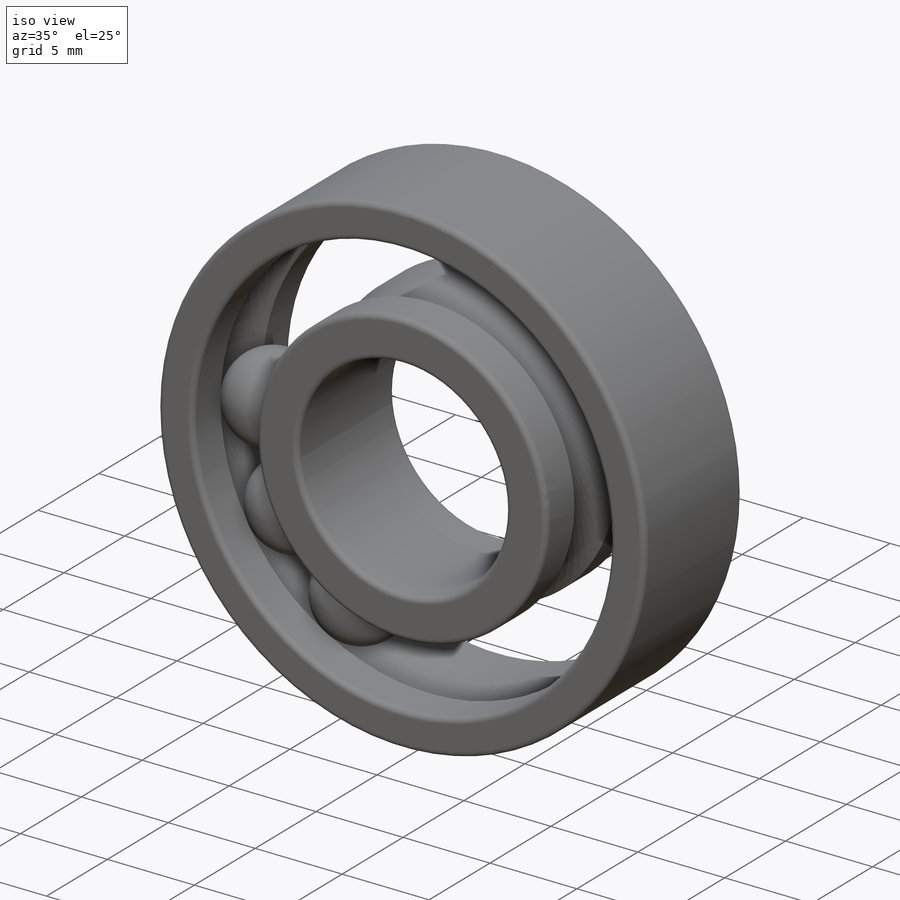
[diagram: iso view]
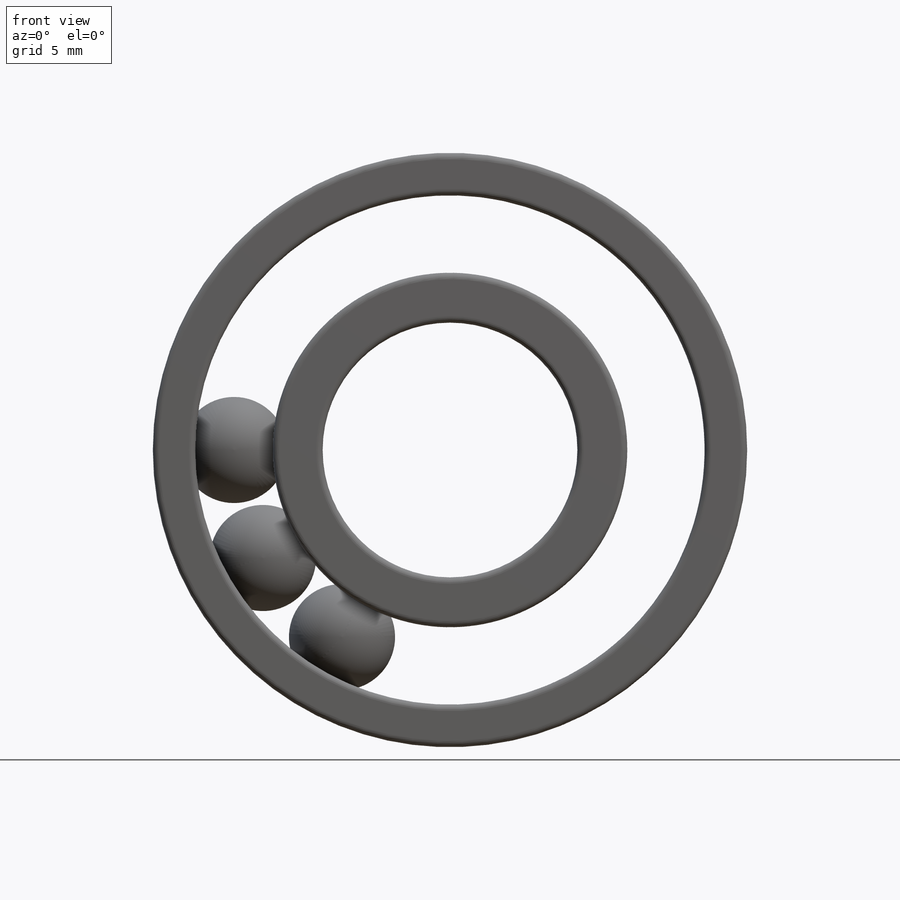
[diagram: front view]
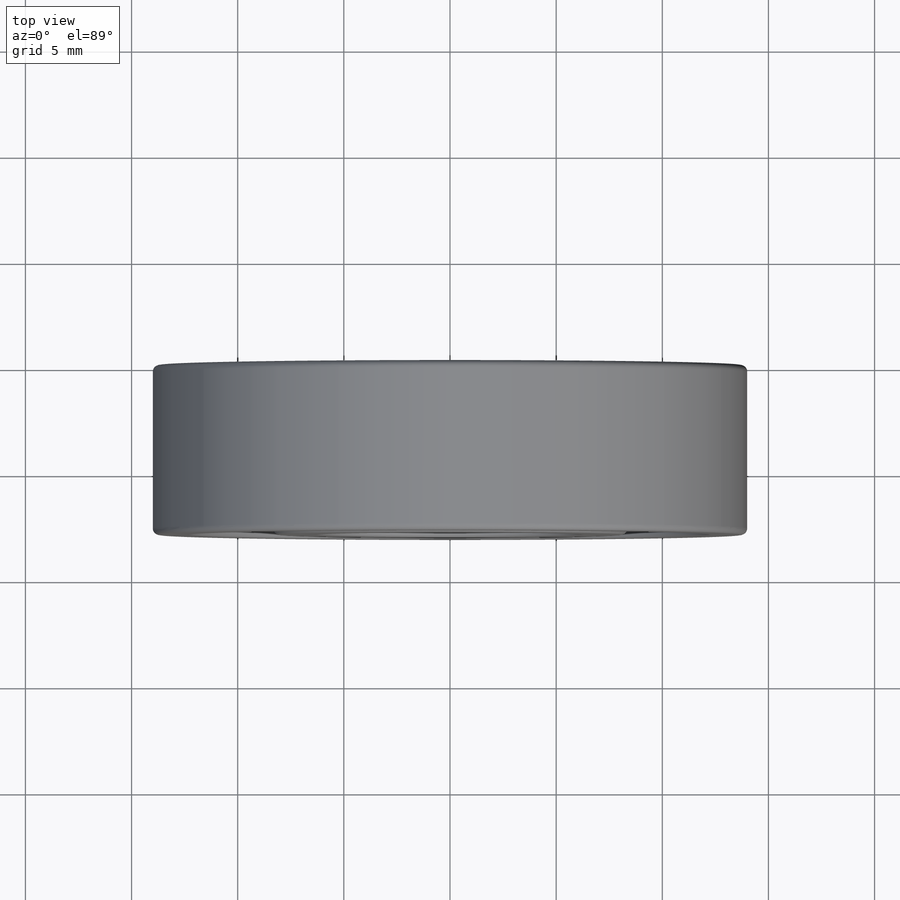
[diagram: top view]
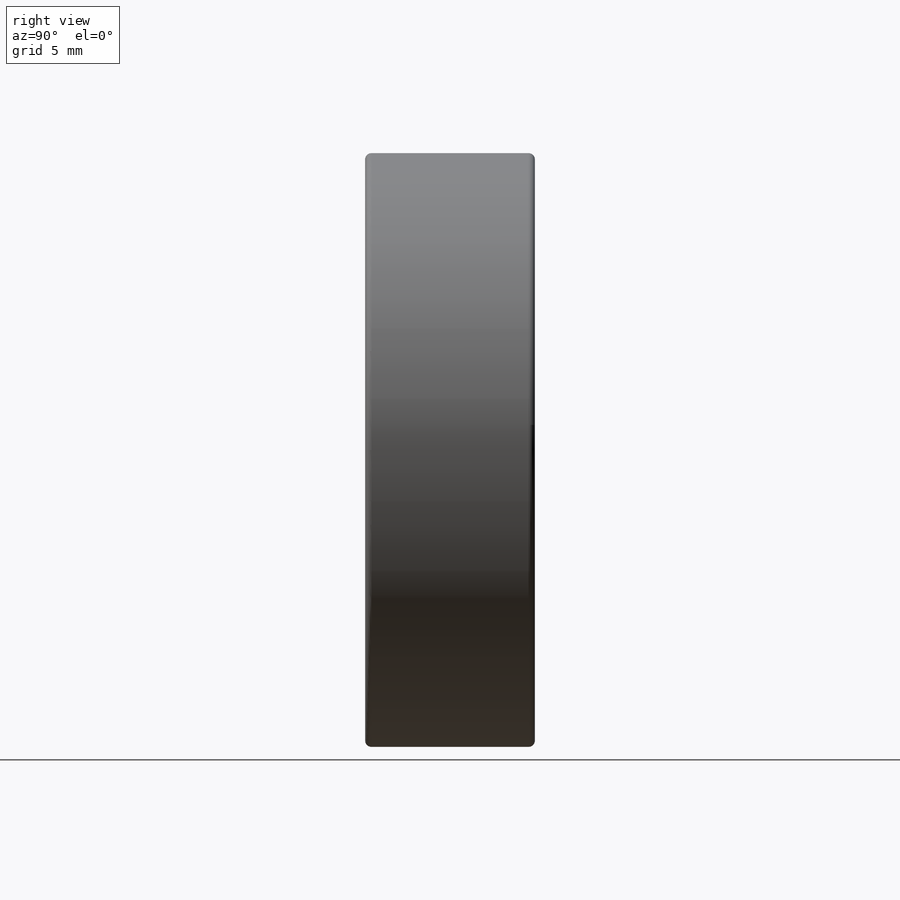
[diagram: right view]
SOLIDWORKS PART (.sldprt)
format: sldprt  version: not decoded by parser v0  size: 971,264 bytes
history: native  units: mm
features: sketch x5, fillet x2, material x1, extrude x1, plane x1, sweep x1, revolve x1, pattern_circular x1 (+11 scaffold rows collapsed)
feature tree (24):
  scaffold x11  (default folders/planes/origin — collapsed)
  material  "Material <not specified>"
  sketch  "Sketch1"  dims[D1=28.0mm D2=12.0mm D3=16.7mm D4=24.0mm]
  extrude  "Boss-Extrude1"  Depth=8mm
  plane  "Middle Plane"
  sketch  "Sketch2"  dims[D1=20.35mm]
  sketch  "Sketch3"
  sketch  "Sketch4"  dims[D2=5.0mm D1=10.175mm]
  sweep  "Cut-Sweep1"
  sketch  "Sketch5"  dims[D1=5.0mm D3=2.5mm D2=10.175mm]
  revolve  "Revolve1"  Angle=360deg
  pattern_circular  "CirPattern1"  Count=12 Angle=360deg
  fillet  "Fillet1"  Radius=0.3mm
  fillet  "Fillet2"  Radius=0.3mm
decode coverage: 9 of 11 modeling features carry decoded parameters
note: suppression state not decoded; provenance and decode notes live in map.json
